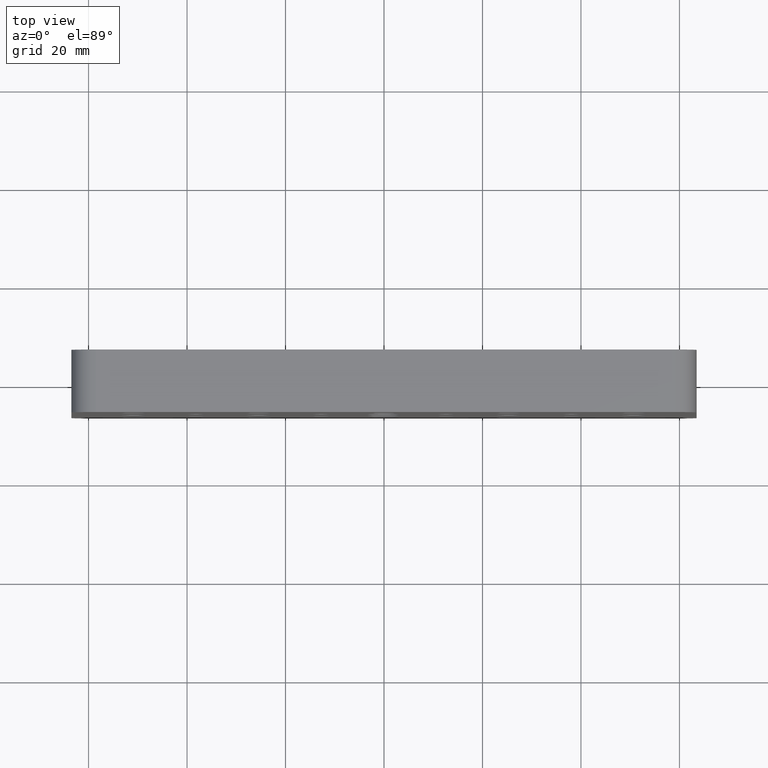
[diagram: clean part render]
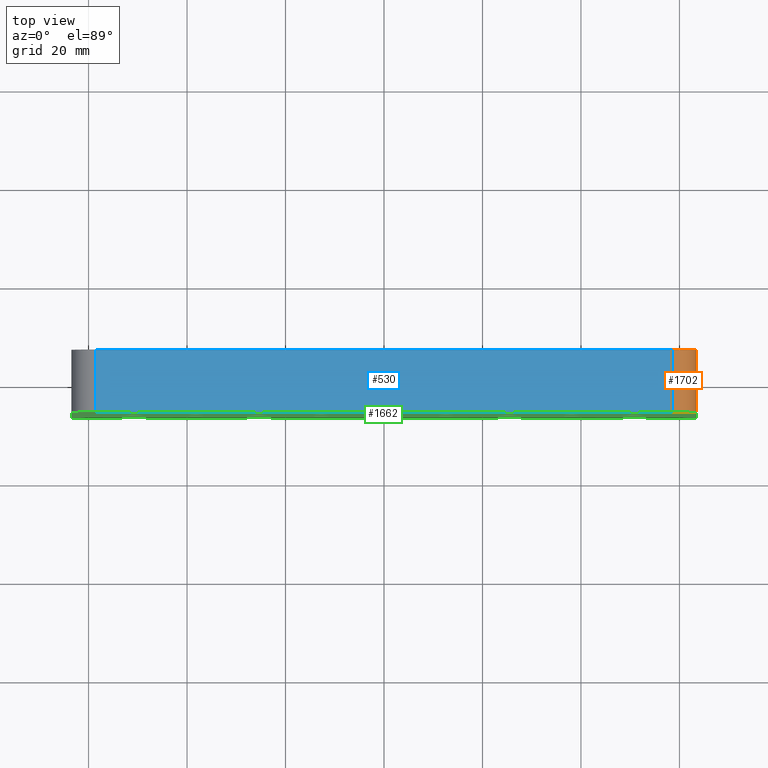
[diagram: same view with three faces highlighted in distinct colors, each labeled with its STEP entity id]
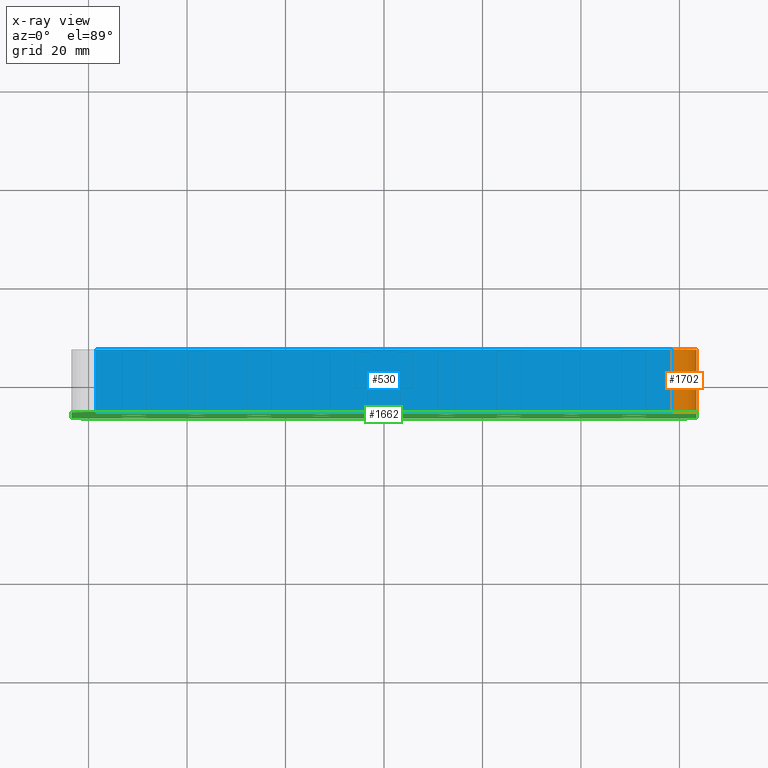
[diagram: x-ray of the same camera — body ghosted, the three highlighted faces saturated]
A machine part, top view with three faces highlighted in distinct colors.
The next image is the same camera in x-ray (body ghosted, the three faces saturated) — at least one of them is partly hidden behind the body in this view.
Their STEP definitions:

[orange] entity #1702 — the highlighted cylindrical surface (edge-blend (fillet) strip) has radius 5 mm, axis along (0, -1, 0).
#36 = ORIENTED_EDGE ( 'NONE', *, *, #1614, .F. ) ;
#76 = VERTEX_POINT ( 'NONE', #2139 ) ;
#105 = ORIENTED_EDGE ( 'NONE', *, *, #2020, .F. ) ;
#219 = CIRCLE ( 'NONE', #2339, 4.999999999999997300 ) ;
#341 = CARTESIAN_POINT ( 'NONE',  ( 63.50000000000002800, 6.349999999999999600, 33.00000000000000700 ) ) ;
#606 = CARTESIAN_POINT ( 'NONE',  ( 58.50000000000002800, 6.349999999999999600, 33.00000000000000700 ) ) ;
#621 = DIRECTION ( 'NONE',  ( 0.0000000000000000000, -1.000000000000000000, 0.0000000000000000000 ) ) ;
#629 = VECTOR ( 'NONE', #2097, 1000.000000000000000 ) ;
#757 = CARTESIAN_POINT ( 'NONE',  ( 63.50000000000002800, 6.349999999999999600, 33.00000000000000700 ) ) ;
#823 = CIRCLE ( 'NONE', #1807, 4.999999999999997300 ) ;
#912 = CARTESIAN_POINT ( 'NONE',  ( 58.50000000000002800, -6.349999999999999600, 33.00000000000000700 ) ) ;
#931 = VERTEX_POINT ( 'NONE', #757 ) ;
#968 = EDGE_CURVE ( 'NONE', #931, #1267, #1259, .T. ) ;
#1053 = CARTESIAN_POINT ( 'NONE',  ( 63.50000000000002800, -6.349999999999999600, 33.00000000000000700 ) ) ;
#1057 = CARTESIAN_POINT ( 'NONE',  ( 58.50000000000003600, 6.349999999999999600, 38.00000000000000000 ) ) ;
#1062 = DIRECTION ( 'NONE',  ( -4.163336342344339400E-015, 0.0000000000000000000, 1.000000000000000000 ) ) ;
#1075 = DIRECTION ( 'NONE',  ( -0.0000000000000000000, -1.000000000000000000, -0.0000000000000000000 ) ) ;
#1130 = LINE ( 'NONE', #2269, #629 ) ;
#1160 = DIRECTION ( 'NONE',  ( 0.0000000000000000000, 0.0000000000000000000, 1.000000000000000000 ) ) ;
#1192 = CARTESIAN_POINT ( 'NONE',  ( 58.50000000000002800, 6.349999999999999600, 33.00000000000000700 ) ) ;
#1259 = LINE ( 'NONE', #341, #1659 ) ;
#1267 = VERTEX_POINT ( 'NONE', #1053 ) ;
#1359 = VERTEX_POINT ( 'NONE', #1057 ) ;
#1559 = DIRECTION ( 'NONE',  ( 0.0000000000000000000, 0.0000000000000000000, -1.000000000000000000 ) ) ;
#1614 = EDGE_CURVE ( 'NONE', #1359, #931, #823, .T. ) ;
#1659 = VECTOR ( 'NONE', #1667, 1000.000000000000000 ) ;
#1667 = DIRECTION ( 'NONE',  ( 0.0000000000000000000, -1.000000000000000000, 0.0000000000000000000 ) ) ;
#1702 = ADVANCED_FACE ( 'NONE', ( #2112 ), #2056, .T. ) ;
#1798 = ORIENTED_EDGE ( 'NONE', *, *, #968, .F. ) ;
#1807 = AXIS2_PLACEMENT_3D ( 'NONE', #606, #1906, #1160 ) ;
#1840 = ORIENTED_EDGE ( 'NONE', *, *, #1898, .F. ) ;
#1898 = EDGE_CURVE ( 'NONE', #1267, #76, #219, .T. ) ;
#1906 = DIRECTION ( 'NONE',  ( 0.0000000000000000000, 1.000000000000000000, 0.0000000000000000000 ) ) ;
#1964 = EDGE_LOOP ( 'NONE', ( #36, #105, #1840, #1798 ) ) ;
#2020 = EDGE_CURVE ( 'NONE', #76, #1359, #1130, .T. ) ;
#2056 = CYLINDRICAL_SURFACE ( 'NONE', #2131, 5.000000000000000900 ) ;
#2097 = DIRECTION ( 'NONE',  ( -0.0000000000000000000, 1.000000000000000000, -0.0000000000000000000 ) ) ;
#2112 = FACE_OUTER_BOUND ( 'NONE', #1964, .T. ) ;
#2131 = AXIS2_PLACEMENT_3D ( 'NONE', #1192, #621, #1559 ) ;
#2139 = CARTESIAN_POINT ( 'NONE',  ( 58.50000000000003600, -6.349999999999999600, 38.00000000000000000 ) ) ;
#2269 = CARTESIAN_POINT ( 'NONE',  ( 58.50000000000003600, 6.349999999999999600, 38.00000000000000000 ) ) ;
#2339 = AXIS2_PLACEMENT_3D ( 'NONE', #912, #1075, #1062 ) ;

[blue] entity #530 — the highlighted planar face has unit normal (0, 0, -1).
#76 = VERTEX_POINT ( 'NONE', #2139 ) ;
#182 = EDGE_CURVE ( 'NONE', #2396, #1359, #241, .T. ) ;
#214 = CARTESIAN_POINT ( 'NONE',  ( -58.49999999999999300, 6.349999999999999600, 38.00000000000000000 ) ) ;
#226 = EDGE_LOOP ( 'NONE', ( #2408, #1039, #1993, #546 ) ) ;
#241 = LINE ( 'NONE', #1430, #2342 ) ;
#355 = EDGE_CURVE ( 'NONE', #2396, #808, #2338, .T. ) ;
#427 = DIRECTION ( 'NONE',  ( -1.000000000000000000, 0.0000000000000000000, -0.0000000000000000000 ) ) ;
#530 = ADVANCED_FACE ( 'NONE', ( #804 ), #1582, .F. ) ;
#546 = ORIENTED_EDGE ( 'NONE', *, *, #355, .T. ) ;
#587 = VECTOR ( 'NONE', #1343, 1000.000000000000000 ) ;
#599 = CARTESIAN_POINT ( 'NONE',  ( -63.49999999999998600, -6.349999999999999600, 38.00000000000000000 ) ) ;
#629 = VECTOR ( 'NONE', #2097, 1000.000000000000000 ) ;
#707 = AXIS2_PLACEMENT_3D ( 'NONE', #1365, #1955, #427 ) ;
#804 = FACE_OUTER_BOUND ( 'NONE', #226, .T. ) ;
#808 = VERTEX_POINT ( 'NONE', #1830 ) ;
#849 = DIRECTION ( 'NONE',  ( 1.000000000000000000, 0.0000000000000000000, 0.0000000000000000000 ) ) ;
#1039 = ORIENTED_EDGE ( 'NONE', *, *, #2020, .T. ) ;
#1057 = CARTESIAN_POINT ( 'NONE',  ( 58.50000000000003600, 6.349999999999999600, 38.00000000000000000 ) ) ;
#1130 = LINE ( 'NONE', #2269, #629 ) ;
#1332 = DIRECTION ( 'NONE',  ( 0.0000000000000000000, -1.000000000000000000, 0.0000000000000000000 ) ) ;
#1343 = DIRECTION ( 'NONE',  ( 1.000000000000000000, 0.0000000000000000000, 0.0000000000000000000 ) ) ;
#1359 = VERTEX_POINT ( 'NONE', #1057 ) ;
#1365 = CARTESIAN_POINT ( 'NONE',  ( -63.49999999999998600, 6.349999999999999600, 38.00000000000000000 ) ) ;
#1430 = CARTESIAN_POINT ( 'NONE',  ( -63.49999999999998600, 6.349999999999999600, 38.00000000000000000 ) ) ;
#1561 = EDGE_CURVE ( 'NONE', #808, #76, #2152, .T. ) ;
#1582 = PLANE ( 'NONE',  #707 ) ;
#1692 = VECTOR ( 'NONE', #1332, 1000.000000000000000 ) ;
#1830 = CARTESIAN_POINT ( 'NONE',  ( -58.49999999999999300, -6.349999999999999600, 38.00000000000000000 ) ) ;
#1849 = CARTESIAN_POINT ( 'NONE',  ( -58.49999999999999300, 6.349999999999999600, 38.00000000000000000 ) ) ;
#1955 = DIRECTION ( 'NONE',  ( 0.0000000000000000000, 0.0000000000000000000, -1.000000000000000000 ) ) ;
#1993 = ORIENTED_EDGE ( 'NONE', *, *, #182, .F. ) ;
#2020 = EDGE_CURVE ( 'NONE', #76, #1359, #1130, .T. ) ;
#2097 = DIRECTION ( 'NONE',  ( -0.0000000000000000000, 1.000000000000000000, -0.0000000000000000000 ) ) ;
#2139 = CARTESIAN_POINT ( 'NONE',  ( 58.50000000000003600, -6.349999999999999600, 38.00000000000000000 ) ) ;
#2152 = LINE ( 'NONE', #599, #587 ) ;
#2269 = CARTESIAN_POINT ( 'NONE',  ( 58.50000000000003600, 6.349999999999999600, 38.00000000000000000 ) ) ;
#2338 = LINE ( 'NONE', #214, #1692 ) ;
#2342 = VECTOR ( 'NONE', #849, 1000.000000000000000 ) ;
#2396 = VERTEX_POINT ( 'NONE', #1849 ) ;
#2408 = ORIENTED_EDGE ( 'NONE', *, *, #1561, .T. ) ;

[green] entity #1662 — the highlighted planar face has unit normal (0, 1, 0).
#1 = DIRECTION ( 'NONE',  ( -0.0000000000000000000, 1.000000000000000000, -0.0000000000000000000 ) ) ;
#7 = DIRECTION ( 'NONE',  ( 0.0000000000000000000, 0.0000000000000000000, 1.000000000000000000 ) ) ;
#12 = FACE_BOUND ( 'NONE', #404, .T. ) ;
#14 = CARTESIAN_POINT ( 'NONE',  ( -50.79999999999999700, -6.349999999999999600, -25.39999999999999900 ) ) ;
#16 = DIRECTION ( 'NONE',  ( -0.0000000000000000000, 1.000000000000000000, -0.0000000000000000000 ) ) ;
#17 = CARTESIAN_POINT ( 'NONE',  ( 50.79999999999999700, -6.349999999999999600, -22.84730000000000100 ) ) ;
#20 = DIRECTION ( 'NONE',  ( -0.0000000000000000000, 1.000000000000000000, -0.0000000000000000000 ) ) ;
#27 = ORIENTED_EDGE ( 'NONE', *, *, #1782, .T. ) ;
#30 = VERTEX_POINT ( 'NONE', #1219 ) ;
#32 = DIRECTION ( 'NONE',  ( 0.0000000000000000000, 0.0000000000000000000, 1.000000000000000000 ) ) ;
#37 = EDGE_CURVE ( 'NONE', #480, #2349, #1385, .T. ) ;
#50 = CIRCLE ( 'NONE', #1713, 2.552699999999998000 ) ;
#52 = ORIENTED_EDGE ( 'NONE', *, *, #2276, .T. ) ;
#53 = AXIS2_PLACEMENT_3D ( 'NONE', #1899, #2093, #1297 ) ;
#56 = EDGE_CURVE ( 'NONE', #2290, #1193, #2019, .T. ) ;
#60 = ORIENTED_EDGE ( 'NONE', *, *, #2334, .T. ) ;
#65 = CARTESIAN_POINT ( 'NONE',  ( 50.79999999999999700, -6.349999999999999600, -25.39999999999999900 ) ) ;
#68 = CARTESIAN_POINT ( 'NONE',  ( 4.137101816879585500E-016, -6.349999999999999600, -3.378199999999997000 ) ) ;
#76 = VERTEX_POINT ( 'NONE', #2139 ) ;
#94 = CARTESIAN_POINT ( 'NONE',  ( 50.79999999999999700, -6.349999999999999600, 25.39999999999999900 ) ) ;
#100 = DIRECTION ( 'NONE',  ( -0.0000000000000000000, 1.000000000000000000, -0.0000000000000000000 ) ) ;
#102 = AXIS2_PLACEMENT_3D ( 'NONE', #678, #140, #522 ) ;
#109 = CIRCLE ( 'NONE', #2275, 2.552699999999998000 ) ;
#110 = VERTEX_POINT ( 'NONE', #681 ) ;
#112 = CARTESIAN_POINT ( 'NONE',  ( 0.0000000000000000000, -6.349999999999999600, 16.07819999999999900 ) ) ;
#115 = VERTEX_POINT ( 'NONE', #1621 ) ;
#117 = CARTESIAN_POINT ( 'NONE',  ( -50.79999999999999700, -6.349999999999999600, 25.39999999999999900 ) ) ;
#119 = ORIENTED_EDGE ( 'NONE', *, *, #2392, .T. ) ;
#120 = DIRECTION ( 'NONE',  ( 0.0000000000000000000, 0.0000000000000000000, 1.000000000000000000 ) ) ;
#127 = DIRECTION ( 'NONE',  ( -0.0000000000000000000, -1.000000000000000000, -0.0000000000000000000 ) ) ;
#129 = FACE_BOUND ( 'NONE', #420, .T. ) ;
#131 = DIRECTION ( 'NONE',  ( 0.0000000000000000000, 0.0000000000000000000, 1.000000000000000000 ) ) ;
#134 = EDGE_CURVE ( 'NONE', #1858, #1450, #684, .T. ) ;
#140 = DIRECTION ( 'NONE',  ( -0.0000000000000000000, 1.000000000000000000, -0.0000000000000000000 ) ) ;
#146 = VERTEX_POINT ( 'NONE', #1992 ) ;
#153 = EDGE_CURVE ( 'NONE', #2052, #2378, #1264, .T. ) ;
#157 = DIRECTION ( 'NONE',  ( 0.0000000000000000000, 0.0000000000000000000, 1.000000000000000000 ) ) ;
#158 = DIRECTION ( 'NONE',  ( -0.0000000000000000000, 1.000000000000000000, -0.0000000000000000000 ) ) ;
#160 = CARTESIAN_POINT ( 'NONE',  ( 25.39999999999999900, -6.349999999999999600, 27.95269999999999700 ) ) ;
#161 = DIRECTION ( 'NONE',  ( 1.826024711554533900E-016, 0.0000000000000000000, 1.000000000000000000 ) ) ;
#167 = CIRCLE ( 'NONE', #2147, 2.552699999999998000 ) ;
#169 = CARTESIAN_POINT ( 'NONE',  ( -63.50000000000000000, -6.349999999999999600, -38.00000000000000000 ) ) ;
#170 = CIRCLE ( 'NONE', #2279, 2.552699999999998000 ) ;
#186 = EDGE_LOOP ( 'NONE', ( #1131, #2118 ) ) ;
#187 = ORIENTED_EDGE ( 'NONE', *, *, #1898, .T. ) ;
#191 = VERTEX_POINT ( 'NONE', #1244 ) ;
#210 = ORIENTED_EDGE ( 'NONE', *, *, #2007, .T. ) ;
#213 = CARTESIAN_POINT ( 'NONE',  ( 63.50000000000000000, -6.349999999999999600, -38.00000000000000000 ) ) ;
#217 = ORIENTED_EDGE ( 'NONE', *, *, #2103, .T. ) ;
#219 = CIRCLE ( 'NONE', #2339, 4.999999999999997300 ) ;
#223 = DIRECTION ( 'NONE',  ( -3.652049423109067800E-016, -0.0000000000000000000, -1.000000000000000000 ) ) ;
#227 = DIRECTION ( 'NONE',  ( -0.0000000000000000000, 1.000000000000000000, -0.0000000000000000000 ) ) ;
#230 = EDGE_CURVE ( 'NONE', #2295, #1417, #443, .T. ) ;
#239 = ORIENTED_EDGE ( 'NONE', *, *, #134, .T. ) ;
#243 = CARTESIAN_POINT ( 'NONE',  ( -63.49999999999998600, -6.349999999999999600, 38.00000000000000000 ) ) ;
#245 = CIRCLE ( 'NONE', #1114, 2.552699999999998000 ) ;
#246 = CARTESIAN_POINT ( 'NONE',  ( -25.39999999999999900, -6.349999999999999600, -25.39999999999999900 ) ) ;
#248 = EDGE_CURVE ( 'NONE', #1345, #2298, #1443, .T. ) ;
#252 = DIRECTION ( 'NONE',  ( 0.0000000000000000000, 0.0000000000000000000, 1.000000000000000000 ) ) ;
#261 = FACE_BOUND ( 'NONE', #1124, .T. ) ;
#263 = CIRCLE ( 'NONE', #374, 2.552699999999998000 ) ;
#266 = FACE_BOUND ( 'NONE', #2166, .T. ) ;
#267 = DIRECTION ( 'NONE',  ( 0.0000000000000000000, 0.0000000000000000000, 1.000000000000000000 ) ) ;
#276 = EDGE_CURVE ( 'NONE', #1110, #1161, #1097, .T. ) ;
#280 = CARTESIAN_POINT ( 'NONE',  ( -25.39999999999999900, -6.349999999999999600, -22.84730000000000100 ) ) ;
#289 = CARTESIAN_POINT ( 'NONE',  ( -63.49999999999998600, -6.349999999999999600, 33.00000000000000700 ) ) ;
#290 = CIRCLE ( 'NONE', #102, 1.727199999999996500 ) ;
#294 = CARTESIAN_POINT ( 'NONE',  ( -50.79999999999999700, -6.349999999999999600, -25.39999999999999900 ) ) ;
#298 = EDGE_LOOP ( 'NONE', ( #538, #52 ) ) ;
#299 = EDGE_LOOP ( 'NONE', ( #2259, #1363 ) ) ;
#303 = VERTEX_POINT ( 'NONE', #547 ) ;
#306 = CARTESIAN_POINT ( 'NONE',  ( 0.0000000000000000000, -6.349999999999999600, -12.69999999999999900 ) ) ;
#308 = DIRECTION ( 'NONE',  ( -0.0000000000000000000, 1.000000000000000000, -0.0000000000000000000 ) ) ;
#311 = AXIS2_PLACEMENT_3D ( 'NONE', #2069, #1893, #534 ) ;
#314 = DIRECTION ( 'NONE',  ( 0.0000000000000000000, 0.0000000000000000000, 1.000000000000000000 ) ) ;
#318 = AXIS2_PLACEMENT_3D ( 'NONE', #425, #227, #1548 ) ;
#329 = CIRCLE ( 'NONE', #351, 2.552699999999998000 ) ;
#332 = DIRECTION ( 'NONE',  ( 0.0000000000000000000, 0.0000000000000000000, 1.000000000000000000 ) ) ;
#343 = CARTESIAN_POINT ( 'NONE',  ( 12.69999999999999900, -6.349999999999999600, -14.42719999999999600 ) ) ;
#344 = CARTESIAN_POINT ( 'NONE',  ( 0.0000000000000000000, -6.349999999999999600, 27.95269999999999700 ) ) ;
#347 = LINE ( 'NONE', #1779, #1469 ) ;
#348 = EDGE_CURVE ( 'NONE', #191, #1211, #2015, .T. ) ;
#351 = AXIS2_PLACEMENT_3D ( 'NONE', #1181, #1920, #1352 ) ;
#354 = CIRCLE ( 'NONE', #495, 3.378199999999997000 ) ;
#356 = AXIS2_PLACEMENT_3D ( 'NONE', #406, #1144, #1715 ) ;
#361 = DIRECTION ( 'NONE',  ( 0.0000000000000000000, 0.0000000000000000000, 1.000000000000000000 ) ) ;
#364 = ORIENTED_EDGE ( 'NONE', *, *, #1178, .T. ) ;
#371 = VERTEX_POINT ( 'NONE', #2440 ) ;
#374 = AXIS2_PLACEMENT_3D ( 'NONE', #1965, #826, #2345 ) ;
#375 = EDGE_LOOP ( 'NONE', ( #2115, #2372 ) ) ;
#378 = CARTESIAN_POINT ( 'NONE',  ( 25.39999999999999900, -6.349999999999999600, 0.0000000000000000000 ) ) ;
#379 = CIRCLE ( 'NONE', #356, 1.727199999999998100 ) ;
#380 = CARTESIAN_POINT ( 'NONE',  ( -50.79999999999999700, -6.349999999999999600, 27.95269999999999700 ) ) ;
#395 = DIRECTION ( 'NONE',  ( -0.0000000000000000000, 1.000000000000000000, -0.0000000000000000000 ) ) ;
#404 = EDGE_LOOP ( 'NONE', ( #719, #1013 ) ) ;
#406 = CARTESIAN_POINT ( 'NONE',  ( -38.09999999999999400, -6.349999999999999600, 12.69999999999999900 ) ) ;
#407 = AXIS2_PLACEMENT_3D ( 'NONE', #2357, #1994, #314 ) ;
#408 = EDGE_CURVE ( 'NONE', #2298, #1345, #620, .T. ) ;
#412 = DIRECTION ( 'NONE',  ( -0.0000000000000000000, 1.000000000000000000, -0.0000000000000000000 ) ) ;
#413 = CIRCLE ( 'NONE', #1549, 5.000000000000000900 ) ;
#414 = CARTESIAN_POINT ( 'NONE',  ( -38.09999999999999400, -6.349999999999999600, -12.69999999999999900 ) ) ;
#416 = AXIS2_PLACEMENT_3D ( 'NONE', #65, #1198, #1023 ) ;
#420 = EDGE_LOOP ( 'NONE', ( #1766, #1879 ) ) ;
#425 = CARTESIAN_POINT ( 'NONE',  ( 38.09999999999999400, -6.349999999999999600, -12.69999999999999900 ) ) ;
#426 = DIRECTION ( 'NONE',  ( 0.0000000000000000000, 0.0000000000000000000, 1.000000000000000000 ) ) ;
#428 = VERTEX_POINT ( 'NONE', #956 ) ;
#433 = EDGE_CURVE ( 'NONE', #921, #303, #2314, .T. ) ;
#438 = FACE_BOUND ( 'NONE', #2262, .T. ) ;
#442 = ORIENTED_EDGE ( 'NONE', *, *, #1634, .F. ) ;
#443 = CIRCLE ( 'NONE', #1126, 2.552699999999998000 ) ;
#445 = CIRCLE ( 'NONE', #2058, 2.552699999999998000 ) ;
#452 = VERTEX_POINT ( 'NONE', #1887 ) ;
#453 = ORIENTED_EDGE ( 'NONE', *, *, #754, .T. ) ;
#465 = CARTESIAN_POINT ( 'NONE',  ( 25.39999999999999900, -6.349999999999999600, 22.84730000000000100 ) ) ;
#466 = DIRECTION ( 'NONE',  ( 0.0000000000000000000, 0.0000000000000000000, 1.000000000000000000 ) ) ;
#474 = VERTEX_POINT ( 'NONE', #1705 ) ;
#479 = DIRECTION ( 'NONE',  ( -0.0000000000000000000, -1.000000000000000000, -0.0000000000000000000 ) ) ;
#480 = VERTEX_POINT ( 'NONE', #17 ) ;
#487 = CARTESIAN_POINT ( 'NONE',  ( 0.0000000000000000000, -6.349999999999999600, 12.69999999999999900 ) ) ;
#493 = EDGE_CURVE ( 'NONE', #30, #699, #354, .T. ) ;
#495 = AXIS2_PLACEMENT_3D ( 'NONE', #978, #2123, #2307 ) ;
#512 = CARTESIAN_POINT ( 'NONE',  ( 0.0000000000000000000, -6.349999999999999600, 25.39999999999999900 ) ) ;
#517 = ORIENTED_EDGE ( 'NONE', *, *, #2192, .T. ) ;
#522 = DIRECTION ( 'NONE',  ( 0.0000000000000000000, 0.0000000000000000000, 1.000000000000000000 ) ) ;
#524 = EDGE_CURVE ( 'NONE', #727, #2331, #170, .T. ) ;
#531 = EDGE_CURVE ( 'NONE', #915, #2204, #1568, .T. ) ;
#534 = DIRECTION ( 'NONE',  ( 0.0000000000000000000, 0.0000000000000000000, 1.000000000000000000 ) ) ;
#538 = ORIENTED_EDGE ( 'NONE', *, *, #230, .T. ) ;
#542 = EDGE_LOOP ( 'NONE', ( #1843, #2110 ) ) ;
#547 = CARTESIAN_POINT ( 'NONE',  ( 25.39999999999999900, -6.349999999999999600, -2.552699999999998000 ) ) ;
#551 = AXIS2_PLACEMENT_3D ( 'NONE', #1803, #2371, #1228 ) ;
#552 = CARTESIAN_POINT ( 'NONE',  ( 4.137101816879585000E-016, -6.349999999999999600, 9.321800000000001400 ) ) ;
#574 = VERTEX_POINT ( 'NONE', #1948 ) ;
#576 = ORIENTED_EDGE ( 'NONE', *, *, #1585, .T. ) ;
#581 = DIRECTION ( 'NONE',  ( 0.0000000000000000000, 0.0000000000000000000, 1.000000000000000000 ) ) ;
#582 = AXIS2_PLACEMENT_3D ( 'NONE', #1341, #1744, #2113 ) ;
#587 = VECTOR ( 'NONE', #1343, 1000.000000000000000 ) ;
#590 = AXIS2_PLACEMENT_3D ( 'NONE', #1106, #903, #1862 ) ;
#596 = DIRECTION ( 'NONE',  ( -0.0000000000000000000, 1.000000000000000000, -0.0000000000000000000 ) ) ;
#598 = CIRCLE ( 'NONE', #318, 1.727199999999998100 ) ;
#599 = CARTESIAN_POINT ( 'NONE',  ( -63.49999999999998600, -6.349999999999999600, 38.00000000000000000 ) ) ;
#614 = FACE_BOUND ( 'NONE', #1052, .T. ) ;
#620 = CIRCLE ( 'NONE', #1732, 2.552699999999998000 ) ;
#632 = CARTESIAN_POINT ( 'NONE',  ( 12.69999999999999900, -6.349999999999999600, 14.42719999999999600 ) ) ;
#640 = CARTESIAN_POINT ( 'NONE',  ( 50.79999999999999700, -6.349999999999999600, -25.39999999999999900 ) ) ;
#643 = AXIS2_PLACEMENT_3D ( 'NONE', #487, #2405, #2421 ) ;
#644 = CIRCLE ( 'NONE', #311, 2.552699999999998000 ) ;
#649 = CIRCLE ( 'NONE', #832, 1.727199999999996500 ) ;
#657 = ORIENTED_EDGE ( 'NONE', *, *, #1296, .T. ) ;
#668 = DIRECTION ( 'NONE',  ( -0.0000000000000000000, 1.000000000000000000, -0.0000000000000000000 ) ) ;
#670 = AXIS2_PLACEMENT_3D ( 'NONE', #2406, #668, #1825 ) ;
#672 = AXIS2_PLACEMENT_3D ( 'NONE', #640, #1044, #466 ) ;
#675 = CIRCLE ( 'NONE', #898, 2.552699999999998000 ) ;
#678 = CARTESIAN_POINT ( 'NONE',  ( 12.69999999999999900, -6.349999999999999600, -12.69999999999999900 ) ) ;
#681 = CARTESIAN_POINT ( 'NONE',  ( -38.09999999999999400, -6.349999999999999600, 14.42719999999999700 ) ) ;
#684 = CIRCLE ( 'NONE', #670, 2.552699999999998000 ) ;
#686 = EDGE_CURVE ( 'NONE', #2349, #480, #1381, .T. ) ;
#687 = ORIENTED_EDGE ( 'NONE', *, *, #2413, .T. ) ;
#690 = ORIENTED_EDGE ( 'NONE', *, *, #814, .T. ) ;
#692 = EDGE_LOOP ( 'NONE', ( #2111, #2120 ) ) ;
#693 = AXIS2_PLACEMENT_3D ( 'NONE', #2172, #1217, #2370 ) ;
#697 = CARTESIAN_POINT ( 'NONE',  ( -50.79999999999999700, -6.349999999999999600, -22.84730000000000100 ) ) ;
#699 = VERTEX_POINT ( 'NONE', #68 ) ;
#702 = AXIS2_PLACEMENT_3D ( 'NONE', #764, #2084, #581 ) ;
#708 = CARTESIAN_POINT ( 'NONE',  ( 3.126155884183445300E-016, -6.349999999999999600, -27.95269999999999700 ) ) ;
#713 = ORIENTED_EDGE ( 'NONE', *, *, #2219, .T. ) ;
#716 = ORIENTED_EDGE ( 'NONE', *, *, #769, .T. ) ;
#717 = EDGE_CURVE ( 'NONE', #452, #2381, #2425, .T. ) ;
#719 = ORIENTED_EDGE ( 'NONE', *, *, #1847, .T. ) ;
#725 = DIRECTION ( 'NONE',  ( -0.0000000000000000000, 1.000000000000000000, -0.0000000000000000000 ) ) ;
#727 = VERTEX_POINT ( 'NONE', #1595 ) ;
#730 = FACE_BOUND ( 'NONE', #2066, .T. ) ;
#733 = EDGE_CURVE ( 'NONE', #1450, #1858, #263, .T. ) ;
#744 = ORIENTED_EDGE ( 'NONE', *, *, #995, .T. ) ;
#747 = CARTESIAN_POINT ( 'NONE',  ( -25.39999999999999900, -6.349999999999999600, -25.39999999999999900 ) ) ;
#754 = EDGE_CURVE ( 'NONE', #1746, #2055, #1981, .T. ) ;
#763 = EDGE_LOOP ( 'NONE', ( #1188, #744 ) ) ;
#764 = CARTESIAN_POINT ( 'NONE',  ( 0.0000000000000000000, -6.349999999999999600, 12.69999999999999900 ) ) ;
#768 = FACE_BOUND ( 'NONE', #299, .T. ) ;
#769 = EDGE_CURVE ( 'NONE', #963, #1446, #290, .T. ) ;
#773 = CARTESIAN_POINT ( 'NONE',  ( -58.50000000000000000, -6.349999999999999600, -38.00000000000000000 ) ) ;
#781 = CIRCLE ( 'NONE', #407, 2.552699999999998000 ) ;
#789 = CARTESIAN_POINT ( 'NONE',  ( 38.09999999999999400, -6.349999999999999600, -12.69999999999999900 ) ) ;
#791 = VERTEX_POINT ( 'NONE', #112 ) ;
#798 = DIRECTION ( 'NONE',  ( 0.0000000000000000000, 0.0000000000000000000, 1.000000000000000000 ) ) ;
#800 = AXIS2_PLACEMENT_3D ( 'NONE', #2237, #2242, #131 ) ;
#803 = AXIS2_PLACEMENT_3D ( 'NONE', #844, #1805, #267 ) ;
#808 = VERTEX_POINT ( 'NONE', #1830 ) ;
#814 = EDGE_CURVE ( 'NONE', #917, #1637, #1092, .T. ) ;
#826 = DIRECTION ( 'NONE',  ( -0.0000000000000000000, 1.000000000000000000, -0.0000000000000000000 ) ) ;
#829 = VECTOR ( 'NONE', #161, 1000.000000000000000 ) ;
#832 = AXIS2_PLACEMENT_3D ( 'NONE', #2280, #596, #798 ) ;
#844 = CARTESIAN_POINT ( 'NONE',  ( -12.69999999999999900, -6.349999999999999600, 12.69999999999999900 ) ) ;
#850 = CIRCLE ( 'NONE', #1298, 2.552699999999998000 ) ;
#859 = FACE_BOUND ( 'NONE', #1738, .T. ) ;
#866 = DIRECTION ( 'NONE',  ( 0.0000000000000000000, 0.0000000000000000000, 1.000000000000000000 ) ) ;
#879 = CIRCLE ( 'NONE', #2312, 3.378199999999997000 ) ;
#884 = EDGE_CURVE ( 'NONE', #303, #921, #850, .T. ) ;
#885 = CARTESIAN_POINT ( 'NONE',  ( -50.79999999999999700, -6.349999999999999600, 25.39999999999999900 ) ) ;
#886 = VERTEX_POINT ( 'NONE', #552 ) ;
#892 = CIRCLE ( 'NONE', #2309, 4.999999999999997300 ) ;
#893 = ORIENTED_EDGE ( 'NONE', *, *, #248, .T. ) ;
#898 = AXIS2_PLACEMENT_3D ( 'NONE', #94, #1845, #1078 ) ;
#903 = DIRECTION ( 'NONE',  ( -0.0000000000000000000, 1.000000000000000000, -0.0000000000000000000 ) ) ;
#912 = CARTESIAN_POINT ( 'NONE',  ( 58.50000000000002800, -6.349999999999999600, 33.00000000000000700 ) ) ;
#915 = VERTEX_POINT ( 'NONE', #1299 ) ;
#917 = VERTEX_POINT ( 'NONE', #344 ) ;
#921 = VERTEX_POINT ( 'NONE', #1484 ) ;
#926 = CARTESIAN_POINT ( 'NONE',  ( 12.69999999999999900, -6.349999999999999600, -10.97280000000000300 ) ) ;
#930 = CARTESIAN_POINT ( 'NONE',  ( -25.39999999999999900, -6.349999999999999600, 0.0000000000000000000 ) ) ;
#933 = DIRECTION ( 'NONE',  ( 0.0000000000000000000, 0.0000000000000000000, 1.000000000000000000 ) ) ;
#940 = FACE_BOUND ( 'NONE', #2343, .T. ) ;
#943 = AXIS2_PLACEMENT_3D ( 'NONE', #306, #1594, #2179 ) ;
#956 = CARTESIAN_POINT ( 'NONE',  ( 50.79999999999999700, -6.349999999999999600, 2.552699999999942500 ) ) ;
#963 = VERTEX_POINT ( 'NONE', #926 ) ;
#964 = CARTESIAN_POINT ( 'NONE',  ( 3.126155884183445300E-016, -6.349999999999999600, 22.84730000000000100 ) ) ;
#965 = DIRECTION ( 'NONE',  ( 0.0000000000000000000, 0.0000000000000000000, 1.000000000000000000 ) ) ;
#978 = CARTESIAN_POINT ( 'NONE',  ( 0.0000000000000000000, -6.349999999999999600, 0.0000000000000000000 ) ) ;
#981 = EDGE_LOOP ( 'NONE', ( #453, #60 ) ) ;
#988 = VERTEX_POINT ( 'NONE', #1691 ) ;
#995 = EDGE_CURVE ( 'NONE', #1193, #2290, #167, .T. ) ;
#998 = DIRECTION ( 'NONE',  ( 0.0000000000000000000, 0.0000000000000000000, 1.000000000000000000 ) ) ;
#999 = CIRCLE ( 'NONE', #803, 1.727199999999996500 ) ;
#1000 = EDGE_CURVE ( 'NONE', #988, #1910, #1119, .T. ) ;
#1003 = EDGE_LOOP ( 'NONE', ( #1243, #119 ) ) ;
#1006 = PLANE ( 'NONE',  #1270 ) ;
#1011 = ORIENTED_EDGE ( 'NONE', *, *, #1804, .T. ) ;
#1013 = ORIENTED_EDGE ( 'NONE', *, *, #1000, .T. ) ;
#1015 = EDGE_CURVE ( 'NONE', #1885, #371, #2360, .T. ) ;
#1019 = AXIS2_PLACEMENT_3D ( 'NONE', #789, #395, #1172 ) ;
#1023 = DIRECTION ( 'NONE',  ( 0.0000000000000000000, 0.0000000000000000000, 1.000000000000000000 ) ) ;
#1027 = EDGE_CURVE ( 'NONE', #2318, #1544, #649, .T. ) ;
#1028 = FACE_BOUND ( 'NONE', #375, .T. ) ;
#1042 = FACE_BOUND ( 'NONE', #1680, .T. ) ;
#1044 = DIRECTION ( 'NONE',  ( -0.0000000000000000000, 1.000000000000000000, -0.0000000000000000000 ) ) ;
#1052 = EDGE_LOOP ( 'NONE', ( #1079, #2266 ) ) ;
#1053 = CARTESIAN_POINT ( 'NONE',  ( 63.50000000000002800, -6.349999999999999600, 33.00000000000000700 ) ) ;
#1062 = DIRECTION ( 'NONE',  ( -4.163336342344339400E-015, 0.0000000000000000000, 1.000000000000000000 ) ) ;
#1066 = ORIENTED_EDGE ( 'NONE', *, *, #1330, .T. ) ;
#1069 = DIRECTION ( 'NONE',  ( -0.0000000000000000000, -1.000000000000000000, -0.0000000000000000000 ) ) ;
#1075 = DIRECTION ( 'NONE',  ( -0.0000000000000000000, -1.000000000000000000, -0.0000000000000000000 ) ) ;
#1076 = CARTESIAN_POINT ( 'NONE',  ( 12.69999999999999900, -6.349999999999999600, 12.69999999999999900 ) ) ;
#1078 = DIRECTION ( 'NONE',  ( 0.0000000000000000000, 0.0000000000000000000, 1.000000000000000000 ) ) ;
#1079 = ORIENTED_EDGE ( 'NONE', *, *, #433, .T. ) ;
#1083 = EDGE_CURVE ( 'NONE', #1544, #2318, #2215, .T. ) ;
#1084 = AXIS2_PLACEMENT_3D ( 'NONE', #1733, #1, #1932 ) ;
#1087 = CIRCLE ( 'NONE', #1019, 1.727199999999998100 ) ;
#1092 = CIRCLE ( 'NONE', #2329, 2.552699999999998000 ) ;
#1097 = LINE ( 'NONE', #169, #829 ) ;
#1101 = DIRECTION ( 'NONE',  ( -0.0000000000000000000, 1.000000000000000000, -0.0000000000000000000 ) ) ;
#1104 = CARTESIAN_POINT ( 'NONE',  ( 63.50000000000000000, -6.349999999999999600, -33.00000000000000000 ) ) ;
#1106 = CARTESIAN_POINT ( 'NONE',  ( 0.0000000000000000000, -6.349999999999999600, -25.39999999999999900 ) ) ;
#1110 = VERTEX_POINT ( 'NONE', #2121 ) ;
#1114 = AXIS2_PLACEMENT_3D ( 'NONE', #1462, #1101, #120 ) ;
#1115 = EDGE_CURVE ( 'NONE', #1412, #474, #1151, .T. ) ;
#1119 = CIRCLE ( 'NONE', #2030, 2.552699999999998000 ) ;
#1120 = DIRECTION ( 'NONE',  ( -0.0000000000000000000, 1.000000000000000000, -0.0000000000000000000 ) ) ;
#1124 = EDGE_LOOP ( 'NONE', ( #1441, #893 ) ) ;
#1126 = AXIS2_PLACEMENT_3D ( 'NONE', #930, #725, #361 ) ;
#1131 = ORIENTED_EDGE ( 'NONE', *, *, #1640, .T. ) ;
#1134 = EDGE_CURVE ( 'NONE', #115, #1493, #1323, .T. ) ;
#1138 = VERTEX_POINT ( 'NONE', #1231 ) ;
#1140 = ORIENTED_EDGE ( 'NONE', *, *, #1547, .T. ) ;
#1144 = DIRECTION ( 'NONE',  ( -0.0000000000000000000, 1.000000000000000000, -0.0000000000000000000 ) ) ;
#1146 = FACE_BOUND ( 'NONE', #298, .T. ) ;
#1147 = CARTESIAN_POINT ( 'NONE',  ( 0.0000000000000000000, -6.349999999999999600, -12.69999999999999900 ) ) ;
#1148 = DIRECTION ( 'NONE',  ( 0.0000000000000000000, 0.0000000000000000000, 1.000000000000000000 ) ) ;
#1151 = CIRCLE ( 'NONE', #1204, 1.727199999999998100 ) ;
#1157 = DIRECTION ( 'NONE',  ( 0.0000000000000000000, 0.0000000000000000000, 1.000000000000000000 ) ) ;
#1161 = VERTEX_POINT ( 'NONE', #289 ) ;
#1162 = CIRCLE ( 'NONE', #693, 1.727199999999998100 ) ;
#1163 = DIRECTION ( 'NONE',  ( -0.0000000000000000000, 1.000000000000000000, -0.0000000000000000000 ) ) ;
#1169 = AXIS2_PLACEMENT_3D ( 'NONE', #2336, #1942, #252 ) ;
#1172 = DIRECTION ( 'NONE',  ( 0.0000000000000000000, 0.0000000000000000000, 1.000000000000000000 ) ) ;
#1174 = DIRECTION ( 'NONE',  ( -0.0000000000000000000, 1.000000000000000000, -0.0000000000000000000 ) ) ;
#1178 = EDGE_CURVE ( 'NONE', #2028, #1138, #999, .T. ) ;
#1181 = CARTESIAN_POINT ( 'NONE',  ( 50.79999999999999700, -6.349999999999999600, -5.565723320818218400E-014 ) ) ;
#1188 = ORIENTED_EDGE ( 'NONE', *, *, #56, .T. ) ;
#1193 = VERTEX_POINT ( 'NONE', #1999 ) ;
#1197 = DIRECTION ( 'NONE',  ( 0.0000000000000000000, 1.000000000000000000, 0.0000000000000000000 ) ) ;
#1198 = DIRECTION ( 'NONE',  ( -0.0000000000000000000, 1.000000000000000000, -0.0000000000000000000 ) ) ;
#1199 = EDGE_CURVE ( 'NONE', #115, #2064, #347, .T. ) ;
#1203 = CARTESIAN_POINT ( 'NONE',  ( 58.50000000000000000, -6.349999999999999600, -33.00000000000000000 ) ) ;
#1204 = AXIS2_PLACEMENT_3D ( 'NONE', #414, #1347, #1157 ) ;
#1211 = VERTEX_POINT ( 'NONE', #1414 ) ;
#1217 = DIRECTION ( 'NONE',  ( -0.0000000000000000000, 1.000000000000000000, -0.0000000000000000000 ) ) ;
#1219 = CARTESIAN_POINT ( 'NONE',  ( 0.0000000000000000000, -6.349999999999999600, 3.378199999999997000 ) ) ;
#1220 = VERTEX_POINT ( 'NONE', #2160 ) ;
#1228 = DIRECTION ( 'NONE',  ( 0.0000000000000000000, 0.0000000000000000000, 1.000000000000000000 ) ) ;
#1231 = CARTESIAN_POINT ( 'NONE',  ( -12.69999999999999900, -6.349999999999999600, 10.97280000000000300 ) ) ;
#1236 = CARTESIAN_POINT ( 'NONE',  ( -25.39999999999999900, -6.349999999999999600, 27.95269999999999700 ) ) ;
#1242 = CARTESIAN_POINT ( 'NONE',  ( -58.50000000000000000, -6.349999999999999600, -33.00000000000000000 ) ) ;
#1243 = ORIENTED_EDGE ( 'NONE', *, *, #153, .T. ) ;
#1244 = CARTESIAN_POINT ( 'NONE',  ( 50.79999999999999700, -6.349999999999999600, 22.84730000000000100 ) ) ;
#1258 = DIRECTION ( 'NONE',  ( -0.0000000000000000000, 1.000000000000000000, -0.0000000000000000000 ) ) ;
#1264 = CIRCLE ( 'NONE', #2153, 2.552699999999998000 ) ;
#1267 = VERTEX_POINT ( 'NONE', #1053 ) ;
#1270 = AXIS2_PLACEMENT_3D ( 'NONE', #243, #1197, #1565 ) ;
#1272 = CARTESIAN_POINT ( 'NONE',  ( -50.79999999999999700, -6.349999999999999600, 2.552699999999998000 ) ) ;
#1279 = ORIENTED_EDGE ( 'NONE', *, *, #1134, .T. ) ;
#1296 = EDGE_CURVE ( 'NONE', #886, #791, #1865, .T. ) ;
#1297 = DIRECTION ( 'NONE',  ( 0.0000000000000000000, 0.0000000000000000000, 1.000000000000000000 ) ) ;
#1298 = AXIS2_PLACEMENT_3D ( 'NONE', #1701, #1677, #2452 ) ;
#1299 = CARTESIAN_POINT ( 'NONE',  ( 38.09999999999999400, -6.349999999999999600, 14.42719999999999700 ) ) ;
#1301 = CIRCLE ( 'NONE', #943, 3.378199999999997900 ) ;
#1316 = FACE_BOUND ( 'NONE', #981, .T. ) ;
#1323 = CIRCLE ( 'NONE', #1340, 5.000000000000000900 ) ;
#1330 = EDGE_CURVE ( 'NONE', #1110, #2064, #413, .T. ) ;
#1336 = EDGE_LOOP ( 'NONE', ( #713, #1011 ) ) ;
#1340 = AXIS2_PLACEMENT_3D ( 'NONE', #1203, #479, #2348 ) ;
#1341 = CARTESIAN_POINT ( 'NONE',  ( 25.39999999999999900, -6.349999999999999600, -25.39999999999999900 ) ) ;
#1343 = DIRECTION ( 'NONE',  ( 1.000000000000000000, 0.0000000000000000000, 0.0000000000000000000 ) ) ;
#1345 = VERTEX_POINT ( 'NONE', #708 ) ;
#1347 = DIRECTION ( 'NONE',  ( -0.0000000000000000000, 1.000000000000000000, -0.0000000000000000000 ) ) ;
#1350 = CARTESIAN_POINT ( 'NONE',  ( 0.0000000000000000000, -6.349999999999999600, -25.39999999999999900 ) ) ;
#1352 = DIRECTION ( 'NONE',  ( 0.0000000000000000000, 0.0000000000000000000, 1.000000000000000000 ) ) ;
#1362 = EDGE_CURVE ( 'NONE', #1211, #191, #675, .T. ) ;
#1363 = ORIENTED_EDGE ( 'NONE', *, *, #524, .T. ) ;
#1366 = AXIS2_PLACEMENT_3D ( 'NONE', #1147, #20, #7 ) ;
#1367 = EDGE_LOOP ( 'NONE', ( #1699, #210 ) ) ;
#1370 = AXIS2_PLACEMENT_3D ( 'NONE', #1539, #412, #1747 ) ;
#1378 = FACE_BOUND ( 'NONE', #1003, .T. ) ;
#1380 = FACE_BOUND ( 'NONE', #542, .T. ) ;
#1381 = CIRCLE ( 'NONE', #672, 2.552699999999998000 ) ;
#1385 = CIRCLE ( 'NONE', #416, 2.552699999999998000 ) ;
#1389 = ORIENTED_EDGE ( 'NONE', *, *, #348, .T. ) ;
#1399 = CARTESIAN_POINT ( 'NONE',  ( -25.39999999999999900, -6.349999999999999600, 25.39999999999999900 ) ) ;
#1402 = AXIS2_PLACEMENT_3D ( 'NONE', #2423, #1258, #157 ) ;
#1403 = FACE_BOUND ( 'NONE', #1787, .T. ) ;
#1411 = ORIENTED_EDGE ( 'NONE', *, *, #493, .T. ) ;
#1412 = VERTEX_POINT ( 'NONE', #1704 ) ;
#1414 = CARTESIAN_POINT ( 'NONE',  ( 50.79999999999999700, -6.349999999999999600, 27.95269999999999700 ) ) ;
#1417 = VERTEX_POINT ( 'NONE', #1478 ) ;
#1419 = EDGE_LOOP ( 'NONE', ( #1908, #1279, #442, #187, #2255, #687, #1706, #1066 ) ) ;
#1426 = ORIENTED_EDGE ( 'NONE', *, *, #733, .T. ) ;
#1431 = VECTOR ( 'NONE', #223, 1000.000000000000000 ) ;
#1441 = ORIENTED_EDGE ( 'NONE', *, *, #408, .T. ) ;
#1443 = CIRCLE ( 'NONE', #590, 2.552699999999998000 ) ;
#1446 = VERTEX_POINT ( 'NONE', #343 ) ;
#1450 = VERTEX_POINT ( 'NONE', #160 ) ;
#1453 = DIRECTION ( 'NONE',  ( 0.0000000000000000000, 0.0000000000000000000, 1.000000000000000000 ) ) ;
#1454 = AXIS2_PLACEMENT_3D ( 'NONE', #1700, #158, #933 ) ;
#1456 = EDGE_CURVE ( 'NONE', #2381, #452, #644, .T. ) ;
#1457 = AXIS2_PLACEMENT_3D ( 'NONE', #378, #2078, #965 ) ;
#1461 = CARTESIAN_POINT ( 'NONE',  ( 0.0000000000000000000, -6.349999999999999600, -9.321800000000001400 ) ) ;
#1462 = CARTESIAN_POINT ( 'NONE',  ( 50.79999999999999700, -6.349999999999999600, -5.565723320818218400E-014 ) ) ;
#1469 = VECTOR ( 'NONE', #1967, 1000.000000000000000 ) ;
#1476 = CIRCLE ( 'NONE', #1366, 3.378199999999997900 ) ;
#1478 = CARTESIAN_POINT ( 'NONE',  ( -25.39999999999999900, -6.349999999999999600, -2.552699999999998000 ) ) ;
#1484 = CARTESIAN_POINT ( 'NONE',  ( 25.39999999999999900, -6.349999999999999600, 2.552699999999998000 ) ) ;
#1493 = VERTEX_POINT ( 'NONE', #1104 ) ;
#1496 = AXIS2_PLACEMENT_3D ( 'NONE', #1572, #2324, #426 ) ;
#1510 = CARTESIAN_POINT ( 'NONE',  ( -12.69999999999999900, -6.349999999999999600, 14.42719999999999600 ) ) ;
#1513 = CIRCLE ( 'NONE', #2394, 2.552699999999998000 ) ;
#1517 = DIRECTION ( 'NONE',  ( 0.0000000000000000000, 0.0000000000000000000, 1.000000000000000000 ) ) ;
#1523 = EDGE_CURVE ( 'NONE', #574, #2059, #1087, .T. ) ;
#1535 = DIRECTION ( 'NONE',  ( 0.0000000000000000000, 0.0000000000000000000, 1.000000000000000000 ) ) ;
#1539 = CARTESIAN_POINT ( 'NONE',  ( 25.39999999999999900, -6.349999999999999600, -25.39999999999999900 ) ) ;
#1544 = VERTEX_POINT ( 'NONE', #1922 ) ;
#1547 = EDGE_CURVE ( 'NONE', #699, #30, #879, .T. ) ;
#1548 = DIRECTION ( 'NONE',  ( 0.0000000000000000000, 0.0000000000000000000, 1.000000000000000000 ) ) ;
#1549 = AXIS2_PLACEMENT_3D ( 'NONE', #1242, #1069, #2229 ) ;
#1561 = EDGE_CURVE ( 'NONE', #808, #76, #2152, .T. ) ;
#1563 = CARTESIAN_POINT ( 'NONE',  ( -12.69999999999999900, -6.349999999999999600, 12.69999999999999900 ) ) ;
#1565 = DIRECTION ( 'NONE',  ( 0.0000000000000000000, -0.0000000000000000000, 1.000000000000000000 ) ) ;
#1568 = CIRCLE ( 'NONE', #1169, 1.727199999999998100 ) ;
#1572 = CARTESIAN_POINT ( 'NONE',  ( -38.09999999999999400, -6.349999999999999600, 12.69999999999999900 ) ) ;
#1585 = EDGE_CURVE ( 'NONE', #146, #110, #379, .T. ) ;
#1594 = DIRECTION ( 'NONE',  ( -0.0000000000000000000, 1.000000000000000000, -0.0000000000000000000 ) ) ;
#1595 = CARTESIAN_POINT ( 'NONE',  ( -25.39999999999999900, -6.349999999999999600, -27.95269999999999700 ) ) ;
#1600 = ORIENTED_EDGE ( 'NONE', *, *, #1362, .T. ) ;
#1602 = EDGE_LOOP ( 'NONE', ( #2225, #576 ) ) ;
#1608 = DIRECTION ( 'NONE',  ( 0.0000000000000000000, 0.0000000000000000000, 1.000000000000000000 ) ) ;
#1615 = DIRECTION ( 'NONE',  ( -0.0000000000000000000, 1.000000000000000000, -0.0000000000000000000 ) ) ;
#1621 = CARTESIAN_POINT ( 'NONE',  ( 58.50000000000000000, -6.349999999999999600, -38.00000000000000000 ) ) ;
#1634 = EDGE_CURVE ( 'NONE', #1267, #1493, #2100, .T. ) ;
#1637 = VERTEX_POINT ( 'NONE', #964 ) ;
#1640 = EDGE_CURVE ( 'NONE', #371, #1885, #2454, .T. ) ;
#1648 = ORIENTED_EDGE ( 'NONE', *, *, #2071, .T. ) ;
#1654 = FACE_BOUND ( 'NONE', #692, .T. ) ;
#1655 = DIRECTION ( 'NONE',  ( 0.0000000000000000000, 0.0000000000000000000, 1.000000000000000000 ) ) ;
#1661 = ORIENTED_EDGE ( 'NONE', *, *, #1944, .T. ) ;
#1662 = ADVANCED_FACE ( 'NONE', ( #940, #438, #2389, #1894, #1378, #12, #768, #261, #1719, #1654, #1146, #129, #2308, #614, #1976, #1316, #730, #2049, #266, #1028, #1403, #1380, #2337, #859, #1042, #1991 ), #1006, .F. ) ;
#1671 = EDGE_CURVE ( 'NONE', #110, #146, #2369, .T. ) ;
#1677 = DIRECTION ( 'NONE',  ( -0.0000000000000000000, 1.000000000000000000, -0.0000000000000000000 ) ) ;
#1680 = EDGE_LOOP ( 'NONE', ( #2443, #657 ) ) ;
#1691 = CARTESIAN_POINT ( 'NONE',  ( -50.79999999999999700, -6.349999999999999600, -27.95269999999999700 ) ) ;
#1693 = VERTEX_POINT ( 'NONE', #1763 ) ;
#1699 = ORIENTED_EDGE ( 'NONE', *, *, #531, .T. ) ;
#1700 = CARTESIAN_POINT ( 'NONE',  ( 38.09999999999999400, -6.349999999999999600, 12.69999999999999900 ) ) ;
#1701 = CARTESIAN_POINT ( 'NONE',  ( 25.39999999999999900, -6.349999999999999600, 0.0000000000000000000 ) ) ;
#1704 = CARTESIAN_POINT ( 'NONE',  ( -38.09999999999999400, -6.349999999999999600, -14.42719999999999700 ) ) ;
#1705 = CARTESIAN_POINT ( 'NONE',  ( -38.09999999999999400, -6.349999999999999600, -10.97280000000000100 ) ) ;
#1706 = ORIENTED_EDGE ( 'NONE', *, *, #276, .F. ) ;
#1713 = AXIS2_PLACEMENT_3D ( 'NONE', #294, #1615, #1795 ) ;
#1715 = DIRECTION ( 'NONE',  ( 0.0000000000000000000, 0.0000000000000000000, 1.000000000000000000 ) ) ;
#1719 = FACE_BOUND ( 'NONE', #186, .T. ) ;
#1720 = CARTESIAN_POINT ( 'NONE',  ( 38.09999999999999400, -6.349999999999999600, -10.97280000000000100 ) ) ;
#1721 = DIRECTION ( 'NONE',  ( -0.0000000000000000000, 1.000000000000000000, -0.0000000000000000000 ) ) ;
#1723 = CARTESIAN_POINT ( 'NONE',  ( 0.0000000000000000000, -6.349999999999999600, 0.0000000000000000000 ) ) ;
#1731 = CARTESIAN_POINT ( 'NONE',  ( 38.09999999999999400, -6.349999999999999600, 10.97280000000000100 ) ) ;
#1732 = AXIS2_PLACEMENT_3D ( 'NONE', #1350, #1163, #1517 ) ;
#1733 = CARTESIAN_POINT ( 'NONE',  ( -12.69999999999999900, -6.349999999999999600, -12.69999999999999900 ) ) ;
#1738 = EDGE_LOOP ( 'NONE', ( #1411, #1140 ) ) ;
#1739 = CIRCLE ( 'NONE', #1454, 1.727199999999998100 ) ;
#1744 = DIRECTION ( 'NONE',  ( -0.0000000000000000000, 1.000000000000000000, -0.0000000000000000000 ) ) ;
#1746 = VERTEX_POINT ( 'NONE', #632 ) ;
#1747 = DIRECTION ( 'NONE',  ( 0.0000000000000000000, 0.0000000000000000000, 1.000000000000000000 ) ) ;
#1763 = CARTESIAN_POINT ( 'NONE',  ( 4.137101816879585000E-016, -6.349999999999999600, -16.07819999999999900 ) ) ;
#1766 = ORIENTED_EDGE ( 'NONE', *, *, #1456, .T. ) ;
#1779 = CARTESIAN_POINT ( 'NONE',  ( -63.50000000000000000, -6.349999999999999600, -38.00000000000000000 ) ) ;
#1782 = EDGE_CURVE ( 'NONE', #474, #1412, #1162, .T. ) ;
#1787 = EDGE_LOOP ( 'NONE', ( #716, #1648 ) ) ;
#1795 = DIRECTION ( 'NONE',  ( 0.0000000000000000000, 0.0000000000000000000, 1.000000000000000000 ) ) ;
#1796 = ORIENTED_EDGE ( 'NONE', *, *, #1115, .T. ) ;
#1803 = CARTESIAN_POINT ( 'NONE',  ( -50.79999999999999700, -6.349999999999999600, 0.0000000000000000000 ) ) ;
#1804 = EDGE_CURVE ( 'NONE', #1693, #2412, #1301, .T. ) ;
#1805 = DIRECTION ( 'NONE',  ( -0.0000000000000000000, 1.000000000000000000, -0.0000000000000000000 ) ) ;
#1825 = DIRECTION ( 'NONE',  ( 0.0000000000000000000, 0.0000000000000000000, 1.000000000000000000 ) ) ;
#1830 = CARTESIAN_POINT ( 'NONE',  ( -58.49999999999999300, -6.349999999999999600, 38.00000000000000000 ) ) ;
#1843 = ORIENTED_EDGE ( 'NONE', *, *, #2227, .T. ) ;
#1845 = DIRECTION ( 'NONE',  ( -0.0000000000000000000, 1.000000000000000000, -0.0000000000000000000 ) ) ;
#1847 = EDGE_CURVE ( 'NONE', #1910, #988, #50, .T. ) ;
#1858 = VERTEX_POINT ( 'NONE', #465 ) ;
#1862 = DIRECTION ( 'NONE',  ( 0.0000000000000000000, 0.0000000000000000000, 1.000000000000000000 ) ) ;
#1864 = CARTESIAN_POINT ( 'NONE',  ( -50.79999999999999700, -6.349999999999999600, 22.84730000000000100 ) ) ;
#1865 = CIRCLE ( 'NONE', #643, 3.378199999999997900 ) ;
#1873 = DIRECTION ( 'NONE',  ( -0.0000000000000000000, 1.000000000000000000, -0.0000000000000000000 ) ) ;
#1879 = ORIENTED_EDGE ( 'NONE', *, *, #717, .T. ) ;
#1885 = VERTEX_POINT ( 'NONE', #2419 ) ;
#1887 = CARTESIAN_POINT ( 'NONE',  ( -50.79999999999999700, -6.349999999999999600, -2.552699999999998000 ) ) ;
#1893 = DIRECTION ( 'NONE',  ( -0.0000000000000000000, 1.000000000000000000, -0.0000000000000000000 ) ) ;
#1894 = FACE_BOUND ( 'NONE', #763, .T. ) ;
#1898 = EDGE_CURVE ( 'NONE', #1267, #76, #219, .T. ) ;
#1899 = CARTESIAN_POINT ( 'NONE',  ( 12.69999999999999900, -6.349999999999999600, -12.69999999999999900 ) ) ;
#1908 = ORIENTED_EDGE ( 'NONE', *, *, #1199, .F. ) ;
#1909 = CIRCLE ( 'NONE', #2351, 1.727199999999996500 ) ;
#1910 = VERTEX_POINT ( 'NONE', #697 ) ;
#1913 = DIRECTION ( 'NONE',  ( -0.0000000000000000000, 1.000000000000000000, -0.0000000000000000000 ) ) ;
#1920 = DIRECTION ( 'NONE',  ( -0.0000000000000000000, 1.000000000000000000, -0.0000000000000000000 ) ) ;
#1922 = CARTESIAN_POINT ( 'NONE',  ( -12.69999999999999900, -6.349999999999999600, -14.42719999999999600 ) ) ;
#1924 = CARTESIAN_POINT ( 'NONE',  ( -25.39999999999999900, -6.349999999999999600, 25.39999999999999900 ) ) ;
#1932 = DIRECTION ( 'NONE',  ( 0.0000000000000000000, 0.0000000000000000000, 1.000000000000000000 ) ) ;
#1942 = DIRECTION ( 'NONE',  ( -0.0000000000000000000, 1.000000000000000000, -0.0000000000000000000 ) ) ;
#1944 = EDGE_CURVE ( 'NONE', #428, #1220, #245, .T. ) ;
#1948 = CARTESIAN_POINT ( 'NONE',  ( 38.09999999999999400, -6.349999999999999600, -14.42719999999999700 ) ) ;
#1959 = DIRECTION ( 'NONE',  ( -0.0000000000000000000, 1.000000000000000000, -0.0000000000000000000 ) ) ;
#1965 = CARTESIAN_POINT ( 'NONE',  ( 25.39999999999999900, -6.349999999999999600, 25.39999999999999900 ) ) ;
#1967 = DIRECTION ( 'NONE',  ( -1.000000000000000000, -0.0000000000000000000, -0.0000000000000000000 ) ) ;
#1976 = FACE_BOUND ( 'NONE', #1367, .T. ) ;
#1981 = CIRCLE ( 'NONE', #2401, 1.727199999999996500 ) ;
#1991 = FACE_OUTER_BOUND ( 'NONE', #1419, .T. ) ;
#1992 = CARTESIAN_POINT ( 'NONE',  ( -38.09999999999999400, -6.349999999999999600, 10.97280000000000100 ) ) ;
#1994 = DIRECTION ( 'NONE',  ( -0.0000000000000000000, 1.000000000000000000, -0.0000000000000000000 ) ) ;
#1999 = CARTESIAN_POINT ( 'NONE',  ( -25.39999999999999900, -6.349999999999999600, 22.84730000000000100 ) ) ;
#2007 = EDGE_CURVE ( 'NONE', #2204, #915, #1739, .T. ) ;
#2011 = CARTESIAN_POINT ( 'NONE',  ( -12.69999999999999900, -6.349999999999999600, -10.97280000000000300 ) ) ;
#2015 = CIRCLE ( 'NONE', #800, 2.552699999999998000 ) ;
#2019 = CIRCLE ( 'NONE', #2068, 2.552699999999998000 ) ;
#2028 = VERTEX_POINT ( 'NONE', #1510 ) ;
#2029 = EDGE_CURVE ( 'NONE', #2331, #727, #109, .T. ) ;
#2030 = AXIS2_PLACEMENT_3D ( 'NONE', #14, #1913, #1535 ) ;
#2034 = CARTESIAN_POINT ( 'NONE',  ( -58.49999999999999300, -6.349999999999999600, 33.00000000000000000 ) ) ;
#2049 = FACE_BOUND ( 'NONE', #1602, .T. ) ;
#2052 = VERTEX_POINT ( 'NONE', #380 ) ;
#2054 = EDGE_CURVE ( 'NONE', #1637, #917, #1513, .T. ) ;
#2055 = VERTEX_POINT ( 'NONE', #2239 ) ;
#2058 = AXIS2_PLACEMENT_3D ( 'NONE', #117, #2238, #1655 ) ;
#2059 = VERTEX_POINT ( 'NONE', #1720 ) ;
#2060 = EDGE_CURVE ( 'NONE', #791, #886, #2344, .T. ) ;
#2064 = VERTEX_POINT ( 'NONE', #773 ) ;
#2066 = EDGE_LOOP ( 'NONE', ( #364, #517 ) ) ;
#2067 = DIRECTION ( 'NONE',  ( 0.0000000000000000000, 0.0000000000000000000, 1.000000000000000000 ) ) ;
#2068 = AXIS2_PLACEMENT_3D ( 'NONE', #1399, #1959, #1608 ) ;
#2069 = CARTESIAN_POINT ( 'NONE',  ( -50.79999999999999700, -6.349999999999999600, 0.0000000000000000000 ) ) ;
#2071 = EDGE_CURVE ( 'NONE', #1446, #963, #2432, .T. ) ;
#2078 = DIRECTION ( 'NONE',  ( -0.0000000000000000000, 1.000000000000000000, -0.0000000000000000000 ) ) ;
#2084 = DIRECTION ( 'NONE',  ( -0.0000000000000000000, 1.000000000000000000, -0.0000000000000000000 ) ) ;
#2093 = DIRECTION ( 'NONE',  ( -0.0000000000000000000, 1.000000000000000000, -0.0000000000000000000 ) ) ;
#2100 = LINE ( 'NONE', #213, #1431 ) ;
#2103 = EDGE_CURVE ( 'NONE', #1220, #428, #329, .T. ) ;
#2110 = ORIENTED_EDGE ( 'NONE', *, *, #1523, .T. ) ;
#2111 = ORIENTED_EDGE ( 'NONE', *, *, #37, .T. ) ;
#2113 = DIRECTION ( 'NONE',  ( 0.0000000000000000000, 0.0000000000000000000, 1.000000000000000000 ) ) ;
#2115 = ORIENTED_EDGE ( 'NONE', *, *, #1027, .T. ) ;
#2118 = ORIENTED_EDGE ( 'NONE', *, *, #1015, .T. ) ;
#2120 = ORIENTED_EDGE ( 'NONE', *, *, #686, .T. ) ;
#2121 = CARTESIAN_POINT ( 'NONE',  ( -63.50000000000000000, -6.349999999999999600, -33.00000000000000000 ) ) ;
#2123 = DIRECTION ( 'NONE',  ( -0.0000000000000000000, 1.000000000000000000, -0.0000000000000000000 ) ) ;
#2139 = CARTESIAN_POINT ( 'NONE',  ( 58.50000000000003600, -6.349999999999999600, 38.00000000000000000 ) ) ;
#2147 = AXIS2_PLACEMENT_3D ( 'NONE', #1924, #1721, #1148 ) ;
#2148 = ORIENTED_EDGE ( 'NONE', *, *, #2054, .T. ) ;
#2152 = LINE ( 'NONE', #599, #587 ) ;
#2153 = AXIS2_PLACEMENT_3D ( 'NONE', #885, #2176, #2196 ) ;
#2160 = CARTESIAN_POINT ( 'NONE',  ( 50.79999999999999700, -6.349999999999999600, -2.552700000000053500 ) ) ;
#2166 = EDGE_LOOP ( 'NONE', ( #27, #1796 ) ) ;
#2168 = EDGE_LOOP ( 'NONE', ( #690, #2148 ) ) ;
#2172 = CARTESIAN_POINT ( 'NONE',  ( -38.09999999999999400, -6.349999999999999600, -12.69999999999999900 ) ) ;
#2176 = DIRECTION ( 'NONE',  ( -0.0000000000000000000, 1.000000000000000000, -0.0000000000000000000 ) ) ;
#2178 = CARTESIAN_POINT ( 'NONE',  ( 0.0000000000000000000, -6.349999999999999600, -22.84730000000000100 ) ) ;
#2179 = DIRECTION ( 'NONE',  ( 0.0000000000000000000, 0.0000000000000000000, 1.000000000000000000 ) ) ;
#2192 = EDGE_CURVE ( 'NONE', #1138, #2028, #1909, .T. ) ;
#2196 = DIRECTION ( 'NONE',  ( 0.0000000000000000000, 0.0000000000000000000, 1.000000000000000000 ) ) ;
#2204 = VERTEX_POINT ( 'NONE', #1731 ) ;
#2215 = CIRCLE ( 'NONE', #1084, 1.727199999999996500 ) ;
#2219 = EDGE_CURVE ( 'NONE', #2412, #1693, #1476, .T. ) ;
#2225 = ORIENTED_EDGE ( 'NONE', *, *, #1671, .T. ) ;
#2227 = EDGE_CURVE ( 'NONE', #2059, #574, #598, .T. ) ;
#2229 = DIRECTION ( 'NONE',  ( 0.0000000000000000000, 0.0000000000000000000, 1.000000000000000000 ) ) ;
#2235 = EDGE_LOOP ( 'NONE', ( #1661, #217 ) ) ;
#2237 = CARTESIAN_POINT ( 'NONE',  ( 50.79999999999999700, -6.349999999999999600, 25.39999999999999900 ) ) ;
#2238 = DIRECTION ( 'NONE',  ( -0.0000000000000000000, 1.000000000000000000, -0.0000000000000000000 ) ) ;
#2239 = CARTESIAN_POINT ( 'NONE',  ( 12.69999999999999900, -6.349999999999999600, 10.97280000000000300 ) ) ;
#2242 = DIRECTION ( 'NONE',  ( -0.0000000000000000000, 1.000000000000000000, -0.0000000000000000000 ) ) ;
#2249 = CIRCLE ( 'NONE', #1402, 1.727199999999996500 ) ;
#2255 = ORIENTED_EDGE ( 'NONE', *, *, #1561, .F. ) ;
#2259 = ORIENTED_EDGE ( 'NONE', *, *, #2029, .T. ) ;
#2262 = EDGE_LOOP ( 'NONE', ( #1426, #239 ) ) ;
#2266 = ORIENTED_EDGE ( 'NONE', *, *, #884, .T. ) ;
#2275 = AXIS2_PLACEMENT_3D ( 'NONE', #747, #1120, #2067 ) ;
#2276 = EDGE_CURVE ( 'NONE', #1417, #2295, #781, .T. ) ;
#2279 = AXIS2_PLACEMENT_3D ( 'NONE', #246, #2315, #998 ) ;
#2280 = CARTESIAN_POINT ( 'NONE',  ( -12.69999999999999900, -6.349999999999999600, -12.69999999999999900 ) ) ;
#2282 = DIRECTION ( 'NONE',  ( 0.0000000000000000000, 0.0000000000000000000, 1.000000000000000000 ) ) ;
#2290 = VERTEX_POINT ( 'NONE', #1236 ) ;
#2295 = VERTEX_POINT ( 'NONE', #2367 ) ;
#2298 = VERTEX_POINT ( 'NONE', #2178 ) ;
#2307 = DIRECTION ( 'NONE',  ( 0.0000000000000000000, 0.0000000000000000000, 1.000000000000000000 ) ) ;
#2308 = FACE_BOUND ( 'NONE', #2235, .T. ) ;
#2309 = AXIS2_PLACEMENT_3D ( 'NONE', #2034, #127, #1453 ) ;
#2312 = AXIS2_PLACEMENT_3D ( 'NONE', #1723, #16, #2282 ) ;
#2314 = CIRCLE ( 'NONE', #1457, 2.552699999999998000 ) ;
#2315 = DIRECTION ( 'NONE',  ( -0.0000000000000000000, 1.000000000000000000, -0.0000000000000000000 ) ) ;
#2318 = VERTEX_POINT ( 'NONE', #2011 ) ;
#2324 = DIRECTION ( 'NONE',  ( -0.0000000000000000000, 1.000000000000000000, -0.0000000000000000000 ) ) ;
#2329 = AXIS2_PLACEMENT_3D ( 'NONE', #512, #308, #866 ) ;
#2331 = VERTEX_POINT ( 'NONE', #280 ) ;
#2334 = EDGE_CURVE ( 'NONE', #2055, #1746, #2249, .T. ) ;
#2336 = CARTESIAN_POINT ( 'NONE',  ( 38.09999999999999400, -6.349999999999999600, 12.69999999999999900 ) ) ;
#2337 = FACE_BOUND ( 'NONE', #1336, .T. ) ;
#2339 = AXIS2_PLACEMENT_3D ( 'NONE', #912, #1075, #1062 ) ;
#2343 = EDGE_LOOP ( 'NONE', ( #1600, #1389 ) ) ;
#2344 = CIRCLE ( 'NONE', #702, 3.378199999999997900 ) ;
#2345 = DIRECTION ( 'NONE',  ( 0.0000000000000000000, 0.0000000000000000000, 1.000000000000000000 ) ) ;
#2348 = DIRECTION ( 'NONE',  ( 0.0000000000000000000, 0.0000000000000000000, 1.000000000000000000 ) ) ;
#2349 = VERTEX_POINT ( 'NONE', #2386 ) ;
#2351 = AXIS2_PLACEMENT_3D ( 'NONE', #1563, #1174, #32 ) ;
#2357 = CARTESIAN_POINT ( 'NONE',  ( -25.39999999999999900, -6.349999999999999600, 0.0000000000000000000 ) ) ;
#2360 = CIRCLE ( 'NONE', #582, 2.552699999999998000 ) ;
#2367 = CARTESIAN_POINT ( 'NONE',  ( -25.39999999999999900, -6.349999999999999600, 2.552699999999998000 ) ) ;
#2369 = CIRCLE ( 'NONE', #1496, 1.727199999999998100 ) ;
#2370 = DIRECTION ( 'NONE',  ( 0.0000000000000000000, 0.0000000000000000000, 1.000000000000000000 ) ) ;
#2371 = DIRECTION ( 'NONE',  ( -0.0000000000000000000, 1.000000000000000000, -0.0000000000000000000 ) ) ;
#2372 = ORIENTED_EDGE ( 'NONE', *, *, #1083, .T. ) ;
#2378 = VERTEX_POINT ( 'NONE', #1864 ) ;
#2381 = VERTEX_POINT ( 'NONE', #1272 ) ;
#2386 = CARTESIAN_POINT ( 'NONE',  ( 50.79999999999999700, -6.349999999999999600, -27.95269999999999700 ) ) ;
#2389 = FACE_BOUND ( 'NONE', #2168, .T. ) ;
#2392 = EDGE_CURVE ( 'NONE', #2378, #2052, #445, .T. ) ;
#2394 = AXIS2_PLACEMENT_3D ( 'NONE', #2450, #1873, #2444 ) ;
#2401 = AXIS2_PLACEMENT_3D ( 'NONE', #1076, #100, #332 ) ;
#2405 = DIRECTION ( 'NONE',  ( -0.0000000000000000000, 1.000000000000000000, -0.0000000000000000000 ) ) ;
#2406 = CARTESIAN_POINT ( 'NONE',  ( 25.39999999999999900, -6.349999999999999600, 25.39999999999999900 ) ) ;
#2412 = VERTEX_POINT ( 'NONE', #1461 ) ;
#2413 = EDGE_CURVE ( 'NONE', #808, #1161, #892, .T. ) ;
#2419 = CARTESIAN_POINT ( 'NONE',  ( 25.39999999999999900, -6.349999999999999600, -27.95269999999999700 ) ) ;
#2421 = DIRECTION ( 'NONE',  ( 0.0000000000000000000, 0.0000000000000000000, 1.000000000000000000 ) ) ;
#2423 = CARTESIAN_POINT ( 'NONE',  ( 12.69999999999999900, -6.349999999999999600, 12.69999999999999900 ) ) ;
#2425 = CIRCLE ( 'NONE', #551, 2.552699999999998000 ) ;
#2432 = CIRCLE ( 'NONE', #53, 1.727199999999996500 ) ;
#2440 = CARTESIAN_POINT ( 'NONE',  ( 25.39999999999999900, -6.349999999999999600, -22.84730000000000100 ) ) ;
#2443 = ORIENTED_EDGE ( 'NONE', *, *, #2060, .T. ) ;
#2444 = DIRECTION ( 'NONE',  ( 0.0000000000000000000, 0.0000000000000000000, 1.000000000000000000 ) ) ;
#2450 = CARTESIAN_POINT ( 'NONE',  ( 0.0000000000000000000, -6.349999999999999600, 25.39999999999999900 ) ) ;
#2452 = DIRECTION ( 'NONE',  ( 0.0000000000000000000, 0.0000000000000000000, 1.000000000000000000 ) ) ;
#2454 = CIRCLE ( 'NONE', #1370, 2.552699999999998000 ) ;